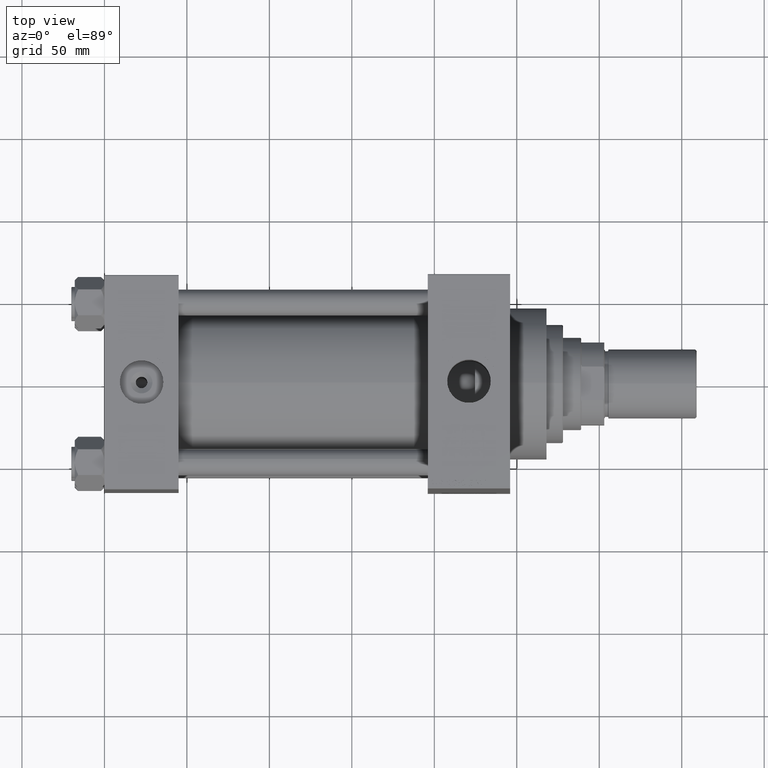
[diagram: clean part render]
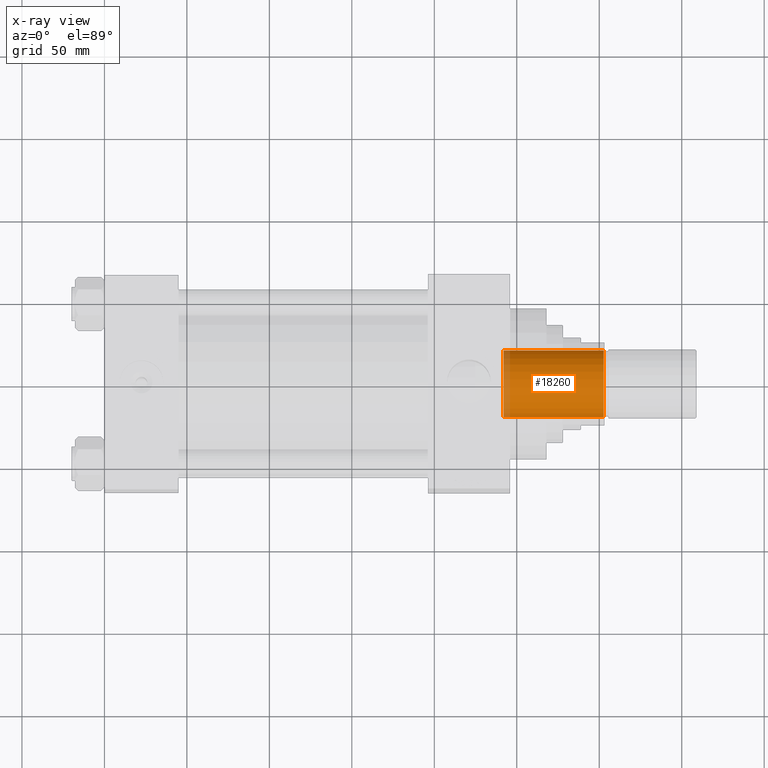
[diagram: x-ray — body ghosted, one internal face saturated and labeled with its STEP entity id]
A machine part, top view, then the same camera in x-ray: the body is ghosted and one INTERNAL B-rep face — a face not visible from any outside direction — is saturated and labeled: STEP entity #18260.
In plain terms, the highlighted cylindrical surface (edge-blend (fillet) strip) has radius 20.25 mm, axis along (1, 0, 0).
Its self-contained STEP definition (entity closure, byte-faithful):
#358 = DIRECTION ( 'NONE',  ( 1.000000000000000000, 0.000000000000000000, 0.000000000000000000 ) ) ;
#841 = EDGE_CURVE ( 'NONE', #41965, #31711, #39344, .T. ) ;
#1545 = CARTESIAN_POINT ( 'NONE',  ( -20.24999999999998934, 2.479909768273389117E-15, 197.0000000000000000 ) ) ;
#2607 = DIRECTION ( 'NONE',  ( 0.000000000000000000, 0.000000000000000000, 1.000000000000000000 ) ) ;
#4667 = CIRCLE ( 'NONE', #32845, 20.24999999999999289 ) ;
#5431 = DIRECTION ( 'NONE',  ( 1.000000000000000000, 0.000000000000000000, 0.000000000000000000 ) ) ;
#5606 = AXIS2_PLACEMENT_3D ( 'NONE', #16693, #24759, #5431 ) ;
#13263 = FACE_OUTER_BOUND ( 'NONE', #14682, .T. ) ;
#13561 = CARTESIAN_POINT ( 'NONE',  ( 20.24999999999998934, 0.000000000000000000, 197.0000000000000000 ) ) ;
#14682 = EDGE_LOOP ( 'NONE', ( #17456, #43720, #41995, #26287 ) ) ;
#16693 = CARTESIAN_POINT ( 'NONE',  ( 0.000000000000000000, 0.000000000000000000, 258.0000000000000000 ) ) ;
#17456 = ORIENTED_EDGE ( 'NONE', *, *, #841, .F. ) ;
#17824 = DIRECTION ( 'NONE',  ( -0.000000000000000000, -0.000000000000000000, 1.000000000000000000 ) ) ;
#18237 = LINE ( 'NONE', #32460, #41845 ) ;
#18260 = ADVANCED_FACE ( 'NONE', ( #13263 ), #31383, .F. ) ;
#19001 = VERTEX_POINT ( 'NONE', #42200 ) ;
#20492 = CARTESIAN_POINT ( 'NONE',  ( 20.24999999999999289, 0.000000000000000000, 258.0000000000000000 ) ) ;
#24759 = DIRECTION ( 'NONE',  ( -0.000000000000000000, -0.000000000000000000, 1.000000000000000000 ) ) ;
#26221 = VERTEX_POINT ( 'NONE', #32123 ) ;
#26287 = ORIENTED_EDGE ( 'NONE', *, *, #40843, .F. ) ;
#26887 = LINE ( 'NONE', #20492, #35819 ) ;
#30504 = EDGE_CURVE ( 'NONE', #41965, #19001, #18237, .T. ) ;
#31383 = CYLINDRICAL_SURFACE ( 'NONE', #5606, 20.24999999999999289 ) ;
#31711 = VERTEX_POINT ( 'NONE', #13561 ) ;
#32123 = CARTESIAN_POINT ( 'NONE',  ( 20.24999999999999289, 0.000000000000000000, 257.6999999999999886 ) ) ;
#32460 = CARTESIAN_POINT ( 'NONE',  ( -20.24999999999999289, 2.479909768273389511E-15, 258.0000000000000000 ) ) ;
#32473 = DIRECTION ( 'NONE',  ( 1.000000000000000000, 0.000000000000000000, 0.000000000000000000 ) ) ;
#32845 = AXIS2_PLACEMENT_3D ( 'NONE', #36152, #2607, #32473 ) ;
#35449 = DIRECTION ( 'NONE',  ( -0.000000000000000000, -0.000000000000000000, 1.000000000000000000 ) ) ;
#35819 = VECTOR ( 'NONE', #35449, 1000.000000000000000 ) ;
#36152 = CARTESIAN_POINT ( 'NONE',  ( 0.000000000000000000, 0.000000000000000000, 257.6999999999999886 ) ) ;
#36391 = DIRECTION ( 'NONE',  ( -0.000000000000000000, -0.000000000000000000, 1.000000000000000000 ) ) ;
#37774 = AXIS2_PLACEMENT_3D ( 'NONE', #47201, #17824, #358 ) ;
#39344 = CIRCLE ( 'NONE', #37774, 20.24999999999998934 ) ;
#40843 = EDGE_CURVE ( 'NONE', #31711, #26221, #26887, .T. ) ;
#41845 = VECTOR ( 'NONE', #36391, 1000.000000000000000 ) ;
#41965 = VERTEX_POINT ( 'NONE', #1545 ) ;
#41995 = ORIENTED_EDGE ( 'NONE', *, *, #45064, .T. ) ;
#42200 = CARTESIAN_POINT ( 'NONE',  ( -20.24999999999999289, 2.479909768273389511E-15, 257.6999999999999886 ) ) ;
#43720 = ORIENTED_EDGE ( 'NONE', *, *, #30504, .T. ) ;
#45064 = EDGE_CURVE ( 'NONE', #19001, #26221, #4667, .T. ) ;
#47201 = CARTESIAN_POINT ( 'NONE',  ( 0.000000000000000000, 0.000000000000000000, 197.0000000000000000 ) ) ;